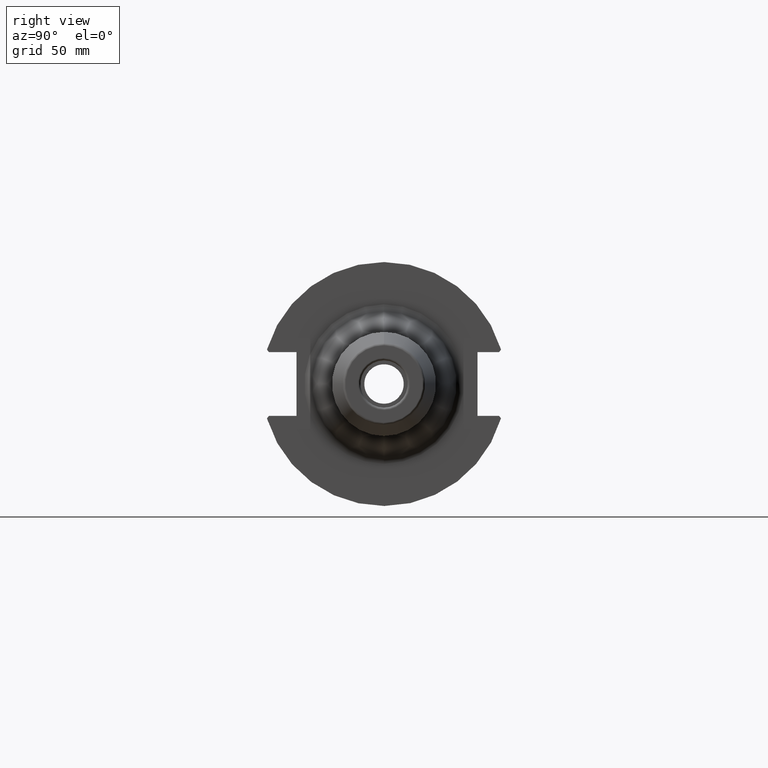
[diagram: clean part render]
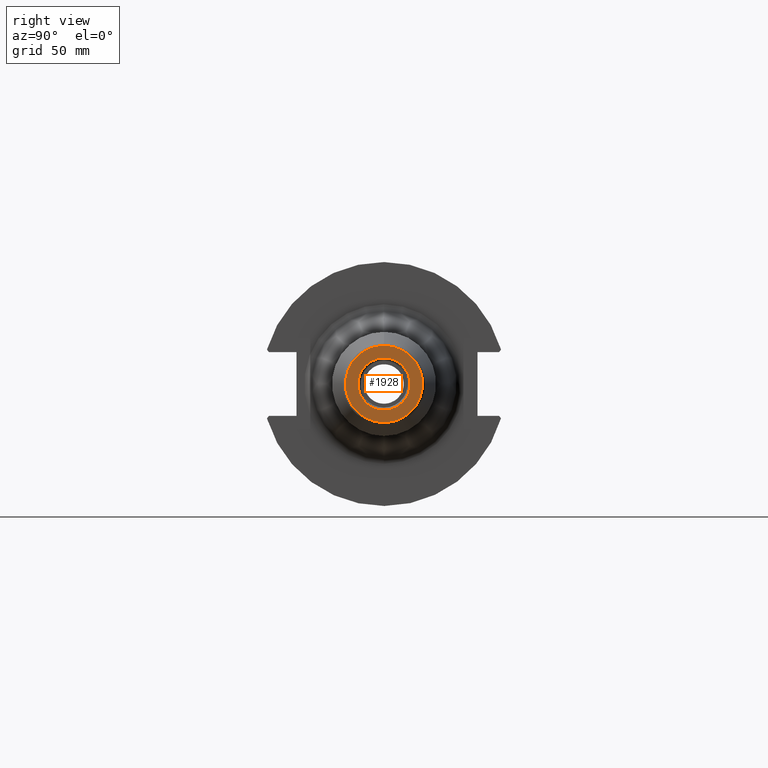
[diagram: same view with one face highlighted and labeled with its STEP entity id]
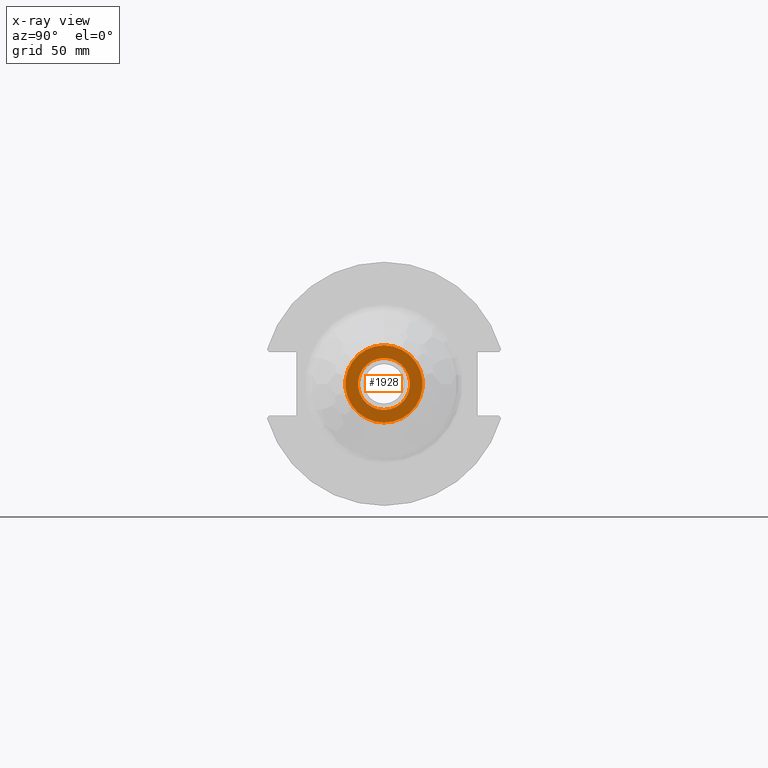
[diagram: x-ray of the same camera — body ghosted, the highlighted face saturated]
A machine part, right view. The second image highlights one B-rep face of the part: STEP entity #1928.
The next image is the same camera in x-ray: the body ghosted, the highlighted face saturated — about 0% of this face is hidden behind the body in this view.
In plain terms, the highlighted planar face has unit normal (1, 0, 0).
Its self-contained STEP definition (entity closure, byte-faithful):
#392=CARTESIAN_POINT('',(1.6E2,0.E0,0.E0));
#393=DIRECTION('',(-1.E0,0.E0,0.E0));
#394=DIRECTION('',(0.E0,0.E0,-1.E0));
#395=AXIS2_PLACEMENT_3D('',#392,#393,#394);
#397=CARTESIAN_POINT('',(1.6E2,0.E0,0.E0));
#398=DIRECTION('',(1.E0,0.E0,0.E0));
#399=DIRECTION('',(0.E0,0.E0,-1.E0));
#400=AXIS2_PLACEMENT_3D('',#397,#398,#399);
#402=CARTESIAN_POINT('',(1.6E2,0.E0,0.E0));
#403=DIRECTION('',(1.E0,0.E0,0.E0));
#404=DIRECTION('',(0.E0,0.E0,-1.E0));
#405=AXIS2_PLACEMENT_3D('',#402,#403,#404);
#417=CARTESIAN_POINT('',(1.6E2,0.E0,0.E0));
#418=DIRECTION('',(-1.E0,0.E0,0.E0));
#419=DIRECTION('',(0.E0,0.E0,-1.E0));
#420=AXIS2_PLACEMENT_3D('',#417,#418,#419);
#1277=CARTESIAN_POINT('',(1.6E2,0.E0,-1.0525E1));
#1278=VERTEX_POINT('',#1277);
#1279=CARTESIAN_POINT('',(1.6E2,0.E0,-1.557560950834E1));
#1280=VERTEX_POINT('',#1279);
#1301=CARTESIAN_POINT('',(1.6E2,0.E0,1.0525E1));
#1302=VERTEX_POINT('',#1301);
#1303=CARTESIAN_POINT('',(1.6E2,0.E0,1.557560950834E1));
#1304=VERTEX_POINT('',#1303);
#1913=CARTESIAN_POINT('',(1.6E2,0.E0,0.E0));
#1914=DIRECTION('',(1.E0,0.E0,0.E0));
#1915=DIRECTION('',(0.E0,0.E0,1.E0));
#1916=AXIS2_PLACEMENT_3D('',#1913,#1914,#1915);
#1917=PLANE('',#1916);
#1919=ORIENTED_EDGE('',*,*,#1918,.F.);
#1921=ORIENTED_EDGE('',*,*,#1920,.T.);
#1922=EDGE_LOOP('',(#1919,#1921));
#1923=FACE_OUTER_BOUND('',#1922,.F.);
#1924=ORIENTED_EDGE('',*,*,#1892,.F.);
#1925=ORIENTED_EDGE('',*,*,#1908,.T.);
#1926=EDGE_LOOP('',(#1924,#1925));
#1927=FACE_BOUND('',#1926,.F.);
#1928=ADVANCED_FACE('',(#1923,#1927),#1917,.T.);
#396=CIRCLE('',#395,1.0525E1);
#401=CIRCLE('',#400,1.0525E1);
#406=CIRCLE('',#405,1.557560950834E1);
#421=CIRCLE('',#420,1.557560950834E1);
#1892=EDGE_CURVE('',#1278,#1302,#396,.T.);
#1908=EDGE_CURVE('',#1278,#1302,#401,.T.);
#1918=EDGE_CURVE('',#1280,#1304,#406,.T.);
#1920=EDGE_CURVE('',#1280,#1304,#421,.T.);